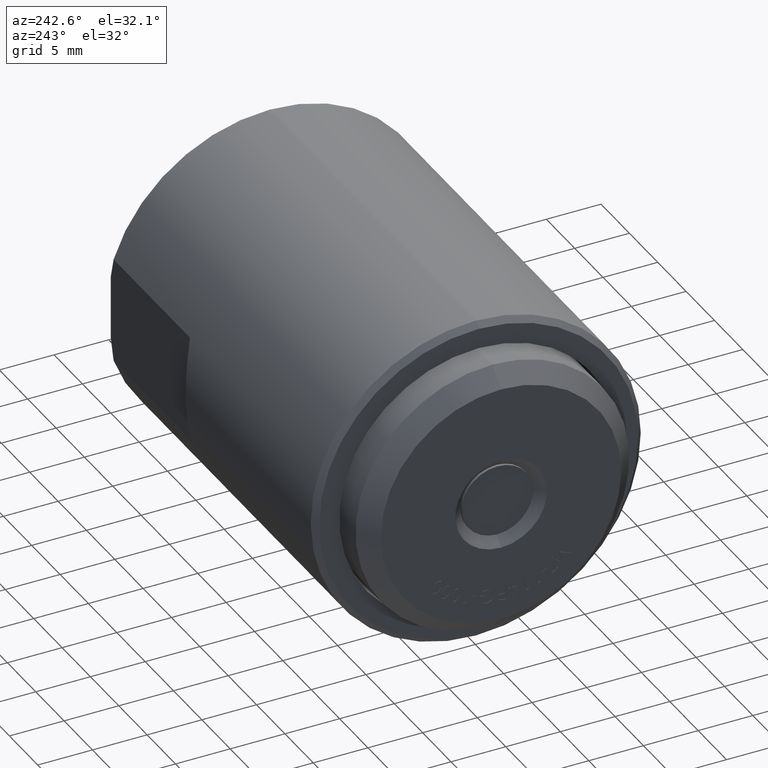
[diagram: clean part render]
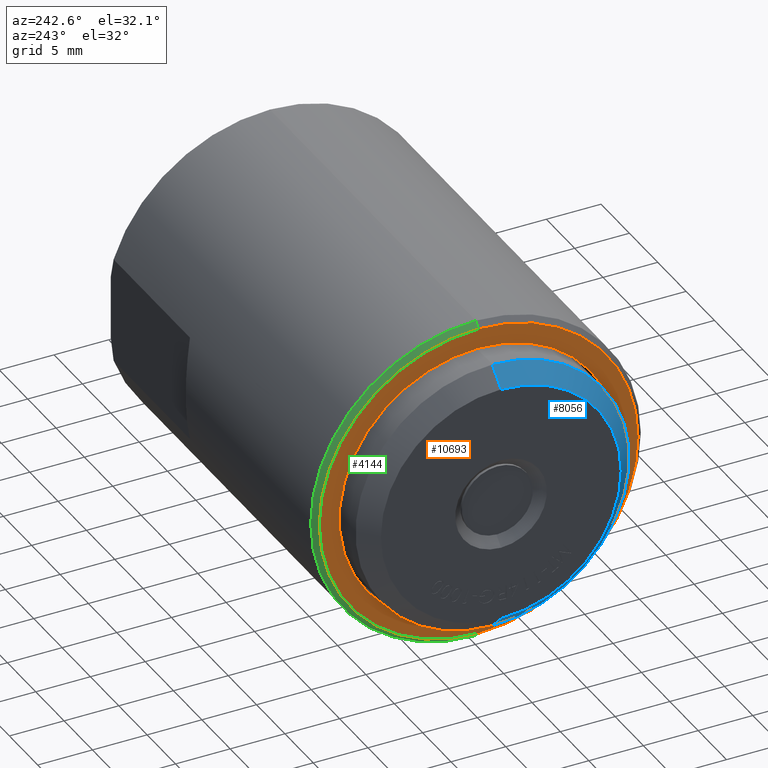
[diagram: same view with three faces highlighted in distinct colors, each labeled with its STEP entity id]
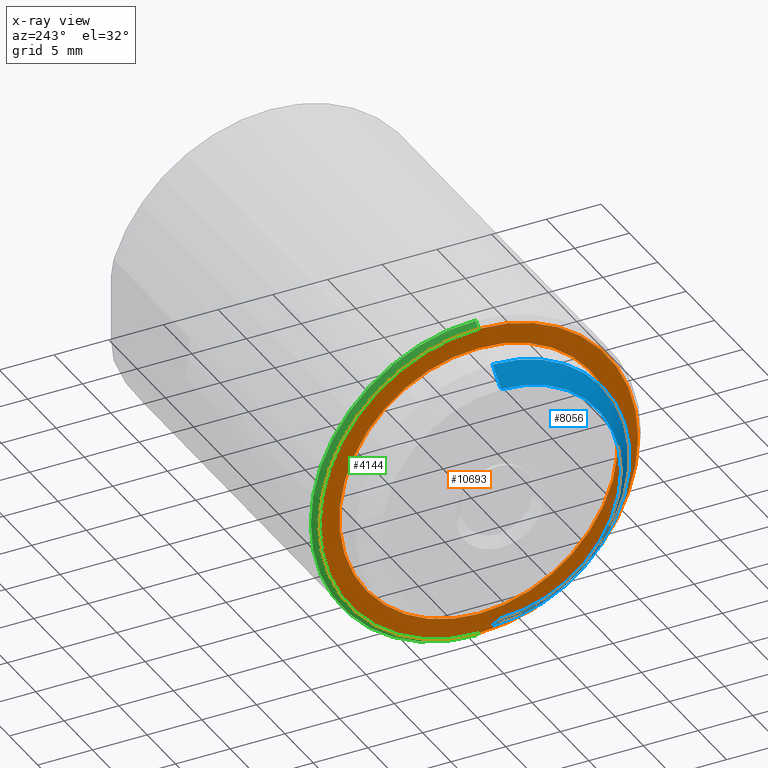
[diagram: x-ray of the same camera — body ghosted, the three highlighted faces saturated]
A machine part, auxiliary view with three faces highlighted in distinct colors.
The next image is the same camera in x-ray (body ghosted, the three faces saturated) — at least one of them is partly hidden behind the body in this view.
Their STEP definitions:

[orange] entity #10693 — the highlighted planar face has unit normal (-1, 0, -0).
#48 = DIRECTION ( 'NONE',  ( -1.000000000000000000, -0.0000000000000000000, -0.0000000000000000000 ) ) ;
#252 = CIRCLE ( 'NONE', #7080, 0.5737999999999999767 ) ;
#382 = CARTESIAN_POINT ( 'NONE',  ( -0.2195000000000000839, 7.149488013422247723E-17, 0.5737999999999999767 ) ) ;
#1021 = DIRECTION ( 'NONE',  ( 0.0000000000000000000, 0.0000000000000000000, 1.000000000000000000 ) ) ;
#1024 = FACE_BOUND ( 'NONE', #8661, .T. ) ;
#1150 = CIRCLE ( 'NONE', #7768, 0.5737999999999999767 ) ;
#1528 = DIRECTION ( 'NONE',  ( -1.000000000000000000, -0.0000000000000000000, -0.0000000000000000000 ) ) ;
#1589 = ORIENTED_EDGE ( 'NONE', *, *, #2093, .F. ) ;
#1720 = DIRECTION ( 'NONE',  ( 0.0000000000000000000, 0.0000000000000000000, 1.000000000000000000 ) ) ;
#2093 = EDGE_CURVE ( 'NONE', #9296, #6880, #6929, .T. ) ;
#2506 = DIRECTION ( 'NONE',  ( 0.0000000000000000000, 0.0000000000000000000, 1.000000000000000000 ) ) ;
#2691 = CIRCLE ( 'NONE', #3676, 0.5014999999999999458 ) ;
#2855 = DIRECTION ( 'NONE',  ( -1.000000000000000000, 0.0000000000000000000, -0.0000000000000000000 ) ) ;
#3382 = DIRECTION ( 'NONE',  ( -1.000000000000000000, -0.0000000000000000000, -0.0000000000000000000 ) ) ;
#3676 = AXIS2_PLACEMENT_3D ( 'NONE', #8181, #1528, #2506 ) ;
#3959 = VERTEX_POINT ( 'NONE', #382 ) ;
#4008 = EDGE_CURVE ( 'NONE', #3959, #11196, #252, .T. ) ;
#4468 = AXIS2_PLACEMENT_3D ( 'NONE', #11201, #2855, #6629 ) ;
#4728 = ORIENTED_EDGE ( 'NONE', *, *, #9826, .F. ) ;
#5380 = AXIS2_PLACEMENT_3D ( 'NONE', #9260, #48, #7480 ) ;
#5593 = CARTESIAN_POINT ( 'NONE',  ( -0.2195000000000000839, 0.0000000000000000000, 0.0000000000000000000 ) ) ;
#6111 = CARTESIAN_POINT ( 'NONE',  ( -0.2195000000000000839, 0.0000000000000000000, 0.0000000000000000000 ) ) ;
#6567 = FACE_OUTER_BOUND ( 'NONE', #6986, .T. ) ;
#6629 = DIRECTION ( 'NONE',  ( -0.0000000000000000000, 0.0000000000000000000, 1.000000000000000000 ) ) ;
#6880 = VERTEX_POINT ( 'NONE', #11289 ) ;
#6929 = CIRCLE ( 'NONE', #5380, 0.5014999999999999458 ) ;
#6986 = EDGE_LOOP ( 'NONE', ( #10383, #11523 ) ) ;
#7080 = AXIS2_PLACEMENT_3D ( 'NONE', #6111, #3382, #1720 ) ;
#7480 = DIRECTION ( 'NONE',  ( 0.0000000000000000000, 0.0000000000000000000, 1.000000000000000000 ) ) ;
#7768 = AXIS2_PLACEMENT_3D ( 'NONE', #5593, #9323, #1021 ) ;
#8181 = CARTESIAN_POINT ( 'NONE',  ( -0.2195000000000000839, 0.0000000000000000000, 0.0000000000000000000 ) ) ;
#8661 = EDGE_LOOP ( 'NONE', ( #4728, #1589 ) ) ;
#9260 = CARTESIAN_POINT ( 'NONE',  ( -0.2195000000000000839, 0.0000000000000000000, 0.0000000000000000000 ) ) ;
#9296 = VERTEX_POINT ( 'NONE', #10928 ) ;
#9323 = DIRECTION ( 'NONE',  ( -1.000000000000000000, -0.0000000000000000000, -0.0000000000000000000 ) ) ;
#9606 = CARTESIAN_POINT ( 'NONE',  ( -0.2195000000000000839, 0.0000000000000000000, -0.5737999999999999767 ) ) ;
#9826 = EDGE_CURVE ( 'NONE', #6880, #9296, #2691, .T. ) ;
#10044 = EDGE_CURVE ( 'NONE', #11196, #3959, #1150, .T. ) ;
#10383 = ORIENTED_EDGE ( 'NONE', *, *, #10044, .T. ) ;
#10693 = ADVANCED_FACE ( 'NONE', ( #6567, #1024 ), #12071, .T. ) ;
#10928 = CARTESIAN_POINT ( 'NONE',  ( -0.2195000000000000839, 6.141603697723974444E-17, -0.5014999999999999458 ) ) ;
#11196 = VERTEX_POINT ( 'NONE', #9606 ) ;
#11201 = CARTESIAN_POINT ( 'NONE',  ( -0.2195000000000000839, 0.0000000000000000000, 0.0000000000000000000 ) ) ;
#11289 = CARTESIAN_POINT ( 'NONE',  ( -0.2195000000000000839, 0.0000000000000000000, 0.5014999999999999458 ) ) ;
#11523 = ORIENTED_EDGE ( 'NONE', *, *, #4008, .T. ) ;
#12071 = PLANE ( 'NONE',  #4468 ) ;

[blue] entity #8056 — the highlighted conical surface has half-angle 45 deg.
#170 = CIRCLE ( 'NONE', #1533, 0.4925000000000000488 ) ;
#546 = CARTESIAN_POINT ( 'NONE',  ( -0.3150000000000000577, 0.0000000000000000000, 0.0000000000000000000 ) ) ;
#805 = EDGE_CURVE ( 'NONE', #2904, #6871, #4536, .T. ) ;
#885 = DIRECTION ( 'NONE',  ( 0.7071067811865471286, 8.659560562354937789E-17, 0.7071067811865479058 ) ) ;
#956 = CARTESIAN_POINT ( 'NONE',  ( -0.3150000000000000577, 0.0000000000000000000, 0.4925000000000000488 ) ) ;
#1533 = AXIS2_PLACEMENT_3D ( 'NONE', #546, #7998, #7081 ) ;
#1822 = DIRECTION ( 'NONE',  ( 0.0000000000000000000, 0.0000000000000000000, -1.000000000000000000 ) ) ;
#2817 = CARTESIAN_POINT ( 'NONE',  ( -0.3150000000000000577, 0.0000000000000000000, -0.4925000000000000488 ) ) ;
#2904 = VERTEX_POINT ( 'NONE', #11628 ) ;
#3234 = VERTEX_POINT ( 'NONE', #956 ) ;
#4140 = EDGE_LOOP ( 'NONE', ( #5104, #5387, #4367, #11416 ) ) ;
#4367 = ORIENTED_EDGE ( 'NONE', *, *, #805, .T. ) ;
#4536 = LINE ( 'NONE', #2817, #9641 ) ;
#5104 = ORIENTED_EDGE ( 'NONE', *, *, #11034, .F. ) ;
#5387 = ORIENTED_EDGE ( 'NONE', *, *, #9234, .F. ) ;
#5486 = CARTESIAN_POINT ( 'NONE',  ( -0.3150000000000000577, 0.0000000000000000000, 0.0000000000000000000 ) ) ;
#5580 = CARTESIAN_POINT ( 'NONE',  ( -0.3750000000000000555, 5.663991446056510216E-17, 0.4325000000000000511 ) ) ;
#6218 = AXIS2_PLACEMENT_3D ( 'NONE', #5486, #10916, #1822 ) ;
#6592 = CARTESIAN_POINT ( 'NONE',  ( -0.3150000000000000577, 6.031385485800716598E-17, -0.4925000000000001599 ) ) ;
#6871 = VERTEX_POINT ( 'NONE', #6592 ) ;
#6900 = CARTESIAN_POINT ( 'NONE',  ( -0.3750000000000000555, 0.0000000000000000000, 0.0000000000000000000 ) ) ;
#7081 = DIRECTION ( 'NONE',  ( 0.0000000000000000000, 0.0000000000000000000, 1.000000000000000000 ) ) ;
#7998 = DIRECTION ( 'NONE',  ( -1.000000000000000000, -0.0000000000000000000, -0.0000000000000000000 ) ) ;
#8056 = ADVANCED_FACE ( 'NONE', ( #9152 ), #11466, .T. ) ;
#8255 = DIRECTION ( 'NONE',  ( 0.7071067811865471286, 0.0000000000000000000, -0.7071067811865479058 ) ) ;
#8551 = CIRCLE ( 'NONE', #10301, 0.4325000000000000511 ) ;
#8681 = DIRECTION ( 'NONE',  ( 0.0000000000000000000, 0.0000000000000000000, 1.000000000000000000 ) ) ;
#9152 = FACE_OUTER_BOUND ( 'NONE', #4140, .T. ) ;
#9234 = EDGE_CURVE ( 'NONE', #2904, #11058, #8551, .T. ) ;
#9248 = LINE ( 'NONE', #11128, #11471 ) ;
#9641 = VECTOR ( 'NONE', #8255, 39.37007874015748143 ) ;
#9892 = EDGE_CURVE ( 'NONE', #6871, #3234, #170, .T. ) ;
#10301 = AXIS2_PLACEMENT_3D ( 'NONE', #6900, #10617, #8681 ) ;
#10617 = DIRECTION ( 'NONE',  ( -1.000000000000000000, -0.0000000000000000000, -0.0000000000000000000 ) ) ;
#10916 = DIRECTION ( 'NONE',  ( 1.000000000000000000, 0.0000000000000000000, 0.0000000000000000000 ) ) ;
#11034 = EDGE_CURVE ( 'NONE', #11058, #3234, #9248, .T. ) ;
#11058 = VERTEX_POINT ( 'NONE', #5580 ) ;
#11128 = CARTESIAN_POINT ( 'NONE',  ( -0.3150000000000000577, 6.031385485800715365E-17, 0.4925000000000000488 ) ) ;
#11416 = ORIENTED_EDGE ( 'NONE', *, *, #9892, .T. ) ;
#11466 = CONICAL_SURFACE ( 'NONE', #6218, 0.4925000000000000488, 0.7853981633974488341 ) ;
#11471 = VECTOR ( 'NONE', #885, 39.37007874015748143 ) ;
#11628 = CARTESIAN_POINT ( 'NONE',  ( -0.3750000000000000555, 0.0000000000000000000, -0.4325000000000000511 ) ) ;

[green] entity #4144 — the highlighted conical surface has half-angle 45 deg.
#19 = CARTESIAN_POINT ( 'NONE',  ( -0.2195000000000000839, 0.0000000000000000000, 0.0000000000000000000 ) ) ;
#252 = CIRCLE ( 'NONE', #7080, 0.5737999999999999767 ) ;
#382 = CARTESIAN_POINT ( 'NONE',  ( -0.2195000000000000839, 7.149488013422247723E-17, 0.5737999999999999767 ) ) ;
#850 = CONICAL_SURFACE ( 'NONE', #2022, 0.5737999999999999767, 0.7853981633974482790 ) ;
#1720 = DIRECTION ( 'NONE',  ( 0.0000000000000000000, 0.0000000000000000000, 1.000000000000000000 ) ) ;
#1840 = DIRECTION ( 'NONE',  ( 0.0000000000000000000, 0.0000000000000000000, -1.000000000000000000 ) ) ;
#1930 = AXIS2_PLACEMENT_3D ( 'NONE', #6389, #2500, #9943 ) ;
#2022 = AXIS2_PLACEMENT_3D ( 'NONE', #19, #8380, #1840 ) ;
#2416 = CARTESIAN_POINT ( 'NONE',  ( -0.1995000000000000939, 0.0000000000000000000, 0.5937999999999999945 ) ) ;
#2500 = DIRECTION ( 'NONE',  ( -1.000000000000000000, -0.0000000000000000000, -0.0000000000000000000 ) ) ;
#3062 = EDGE_CURVE ( 'NONE', #11196, #6384, #10959, .T. ) ;
#3382 = DIRECTION ( 'NONE',  ( -1.000000000000000000, -0.0000000000000000000, -0.0000000000000000000 ) ) ;
#3901 = EDGE_CURVE ( 'NONE', #3959, #10357, #8573, .T. ) ;
#3959 = VERTEX_POINT ( 'NONE', #382 ) ;
#4008 = EDGE_CURVE ( 'NONE', #3959, #11196, #252, .T. ) ;
#4144 = ADVANCED_FACE ( 'NONE', ( #6353 ), #850, .T. ) ;
#4515 = ORIENTED_EDGE ( 'NONE', *, *, #4008, .F. ) ;
#4664 = CIRCLE ( 'NONE', #1930, 0.5937999999999999945 ) ;
#4786 = DIRECTION ( 'NONE',  ( 0.7071067811865474617, 8.659560562354932858E-17, 0.7071067811865474617 ) ) ;
#6111 = CARTESIAN_POINT ( 'NONE',  ( -0.2195000000000000839, 0.0000000000000000000, 0.0000000000000000000 ) ) ;
#6353 = FACE_OUTER_BOUND ( 'NONE', #7369, .T. ) ;
#6384 = VERTEX_POINT ( 'NONE', #6550 ) ;
#6389 = CARTESIAN_POINT ( 'NONE',  ( -0.1995000000000000939, 0.0000000000000000000, 0.0000000000000000000 ) ) ;
#6550 = CARTESIAN_POINT ( 'NONE',  ( -0.1995000000000000939, 7.271952693336982773E-17, -0.5937999999999999945 ) ) ;
#6869 = VECTOR ( 'NONE', #7302, 39.37007874015748854 ) ;
#6878 = VECTOR ( 'NONE', #4786, 39.37007874015748854 ) ;
#7080 = AXIS2_PLACEMENT_3D ( 'NONE', #6111, #3382, #1720 ) ;
#7302 = DIRECTION ( 'NONE',  ( 0.7071067811865474617, 0.0000000000000000000, -0.7071067811865474617 ) ) ;
#7369 = EDGE_LOOP ( 'NONE', ( #4515, #10681, #10858, #9865 ) ) ;
#8380 = DIRECTION ( 'NONE',  ( 1.000000000000000000, 0.0000000000000000000, 0.0000000000000000000 ) ) ;
#8513 = CARTESIAN_POINT ( 'NONE',  ( -0.2195000000000000839, 7.027023333507511441E-17, 0.5737999999999999767 ) ) ;
#8573 = LINE ( 'NONE', #8513, #6878 ) ;
#9606 = CARTESIAN_POINT ( 'NONE',  ( -0.2195000000000000839, 0.0000000000000000000, -0.5737999999999999767 ) ) ;
#9865 = ORIENTED_EDGE ( 'NONE', *, *, #3062, .F. ) ;
#9943 = DIRECTION ( 'NONE',  ( 0.0000000000000000000, 0.0000000000000000000, 1.000000000000000000 ) ) ;
#10168 = CARTESIAN_POINT ( 'NONE',  ( -0.2195000000000000839, 0.0000000000000000000, -0.5737999999999999767 ) ) ;
#10357 = VERTEX_POINT ( 'NONE', #2416 ) ;
#10633 = EDGE_CURVE ( 'NONE', #10357, #6384, #4664, .T. ) ;
#10681 = ORIENTED_EDGE ( 'NONE', *, *, #3901, .T. ) ;
#10858 = ORIENTED_EDGE ( 'NONE', *, *, #10633, .T. ) ;
#10959 = LINE ( 'NONE', #10168, #6869 ) ;
#11196 = VERTEX_POINT ( 'NONE', #9606 ) ;